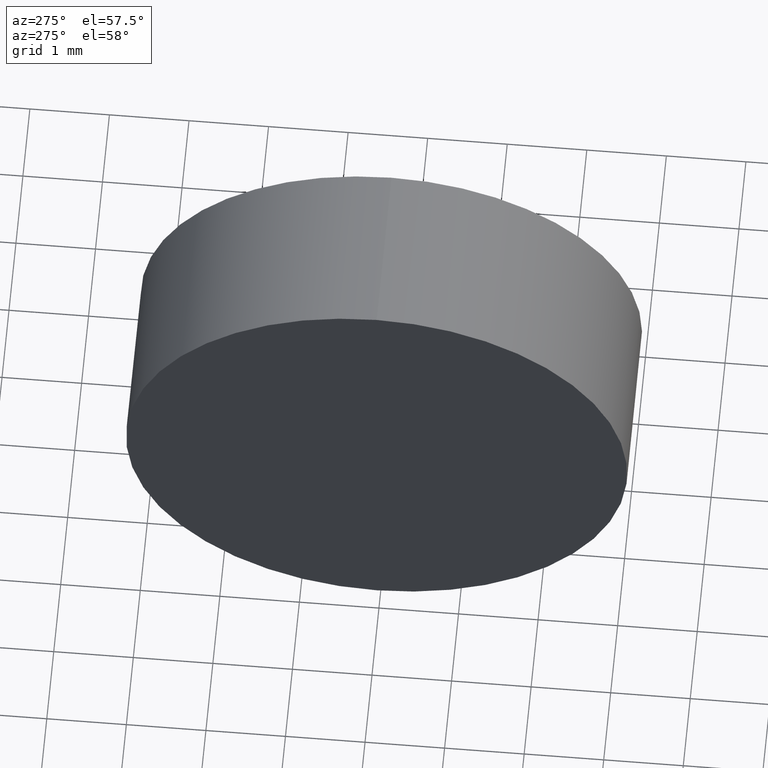
[diagram: clean part render]
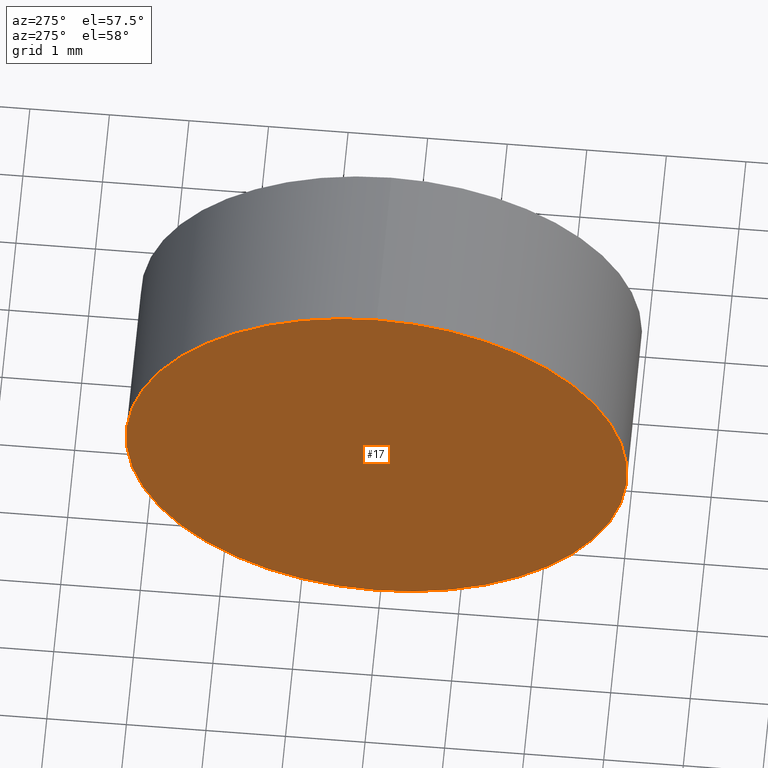
[diagram: same view with one face highlighted and labeled with its STEP entity id]
A machine part, auxiliary view. The second image highlights one B-rep face of the part: STEP entity #17.
In plain terms, the highlighted planar face has unit normal (1, 0, 0).
Its self-contained STEP definition (entity closure, byte-faithful):
#17 = ADVANCED_FACE ( 'NONE', ( #70 ), #132, .F. ) ;
#18 = VERTEX_POINT ( 'NONE', #71 ) ;
#20 = CIRCLE ( 'NONE', #145, 3.150000000000001700 ) ;
#21 = CARTESIAN_POINT ( 'NONE',  ( 22.17218947520228100, 13.04452057459747900, 3.150000000000001700 ) ) ;
#27 = EDGE_LOOP ( 'NONE', ( #99, #101 ) ) ;
#29 = DIRECTION ( 'NONE',  ( 0.0000000000000000000, 0.0000000000000000000, 1.000000000000000000 ) ) ;
#44 = DIRECTION ( 'NONE',  ( -1.000000000000000000, -0.0000000000000000000, -0.0000000000000000000 ) ) ;
#70 = FACE_OUTER_BOUND ( 'NONE', #27, .T. ) ;
#71 = CARTESIAN_POINT ( 'NONE',  ( 22.17218947520228100, 13.04452057459747900, -3.150000000000001700 ) ) ;
#72 = DIRECTION ( 'NONE',  ( -1.000000000000000000, -0.0000000000000000000, -0.0000000000000000000 ) ) ;
#82 = EDGE_CURVE ( 'NONE', #84, #18, #125, .T. ) ;
#84 = VERTEX_POINT ( 'NONE', #21 ) ;
#89 = EDGE_CURVE ( 'NONE', #18, #84, #20, .T. ) ;
#90 = CARTESIAN_POINT ( 'NONE',  ( 22.17218947520228100, 13.04452057459747900, 0.0000000000000000000 ) ) ;
#99 = ORIENTED_EDGE ( 'NONE', *, *, #82, .T. ) ;
#101 = ORIENTED_EDGE ( 'NONE', *, *, #89, .T. ) ;
#104 = DIRECTION ( 'NONE',  ( 0.0000000000000000000, 0.0000000000000000000, 1.000000000000000000 ) ) ;
#125 = CIRCLE ( 'NONE', #142, 3.150000000000001700 ) ;
#128 = CARTESIAN_POINT ( 'NONE',  ( 22.17218947520228100, 13.04452057459747900, 0.0000000000000000000 ) ) ;
#130 = CARTESIAN_POINT ( 'NONE',  ( 22.17218947520228100, 13.04452057459747900, 0.0000000000000000000 ) ) ;
#132 = PLANE ( 'NONE',  #135 ) ;
#135 = AXIS2_PLACEMENT_3D ( 'NONE', #130, #164, #161 ) ;
#142 = AXIS2_PLACEMENT_3D ( 'NONE', #90, #72, #104 ) ;
#145 = AXIS2_PLACEMENT_3D ( 'NONE', #128, #44, #29 ) ;
#161 = DIRECTION ( 'NONE',  ( 0.0000000000000000000, 0.0000000000000000000, -1.000000000000000000 ) ) ;
#164 = DIRECTION ( 'NONE',  ( 1.000000000000000000, 0.0000000000000000000, 0.0000000000000000000 ) ) ;